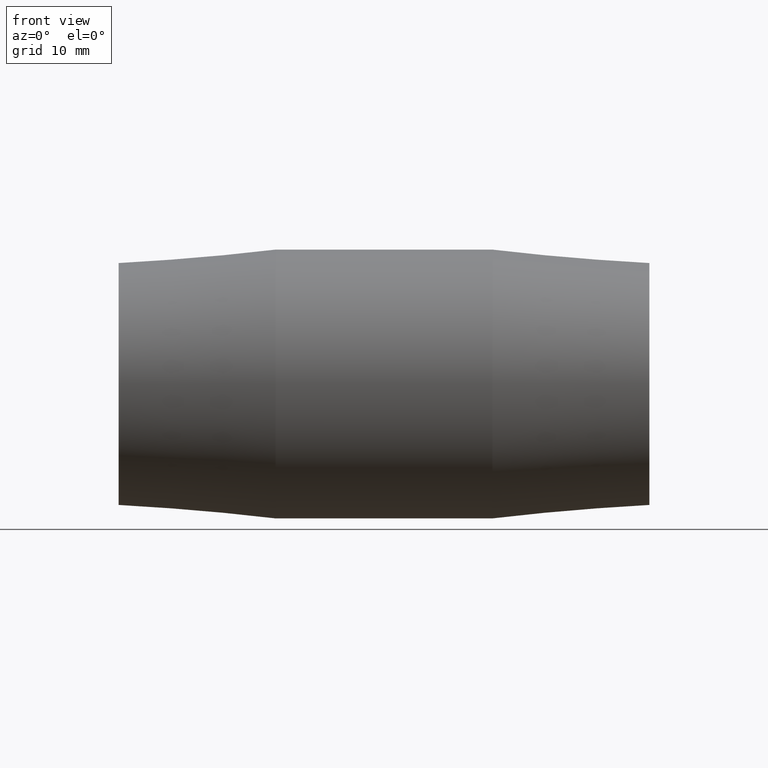
[diagram: clean part render]
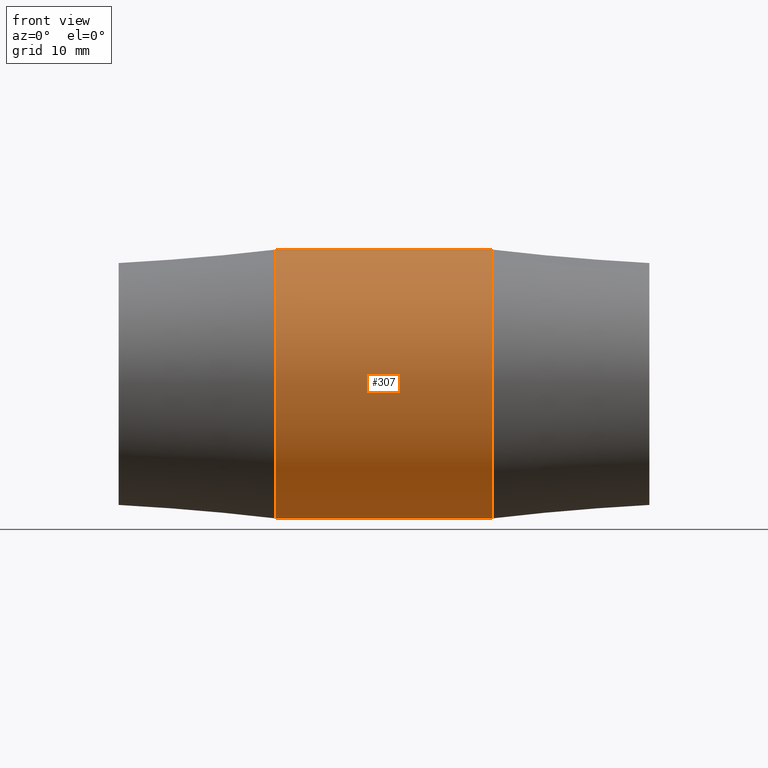
[diagram: same view with one face highlighted and labeled with its STEP entity id]
A machine part, front view. The second image highlights one B-rep face of the part: STEP entity #307.
In plain terms, the highlighted cylindrical surface (bore or boss wall) has radius 18 mm, axis along (1, 0, 0).
Its self-contained STEP definition (entity closure, byte-faithful):
#33=FACE_BOUND('',#112,.T.);
#55=CYLINDRICAL_SURFACE('',#347,18.);
#73=FACE_OUTER_BOUND('',#111,.T.);
#111=EDGE_LOOP('',(#249));
#112=EDGE_LOOP('',(#250));
#155=CIRCLE('',#348,18.);
#156=CIRCLE('',#349,18.);
#183=VERTEX_POINT('',#601);
#184=VERTEX_POINT('',#603);
#211=EDGE_CURVE('',#183,#183,#155,.T.);
#212=EDGE_CURVE('',#184,#184,#156,.T.);
#249=ORIENTED_EDGE('',*,*,#211,.T.);
#250=ORIENTED_EDGE('',*,*,#212,.F.);
#307=ADVANCED_FACE('',(#73,#33),#55,.T.);
#347=AXIS2_PLACEMENT_3D('',#600,#425,#426);
#348=AXIS2_PLACEMENT_3D('',#602,#427,#428);
#349=AXIS2_PLACEMENT_3D('',#604,#429,#430);
#425=DIRECTION('center_axis',(1.,1.83697019872103E-16,0.));
#426=DIRECTION('ref_axis',(-1.96131485542617E-16,1.,0.));
#427=DIRECTION('center_axis',(1.,1.83697019872103E-16,0.));
#428=DIRECTION('ref_axis',(0.,0.,-1.));
#429=DIRECTION('center_axis',(1.,1.83697019872103E-16,0.));
#430=DIRECTION('ref_axis',(0.,0.,-1.));
#600=CARTESIAN_POINT('Origin',(7.2275,7.84891441658528E-15,0.));
#601=CARTESIAN_POINT('',(-14.5,18.,0.));
#602=CARTESIAN_POINT('Origin',(-14.5,3.85763741731416E-15,0.));
#603=CARTESIAN_POINT('',(14.5,18.,0.));
#604=CARTESIAN_POINT('Origin',(14.5,9.18485099360515E-15,0.));